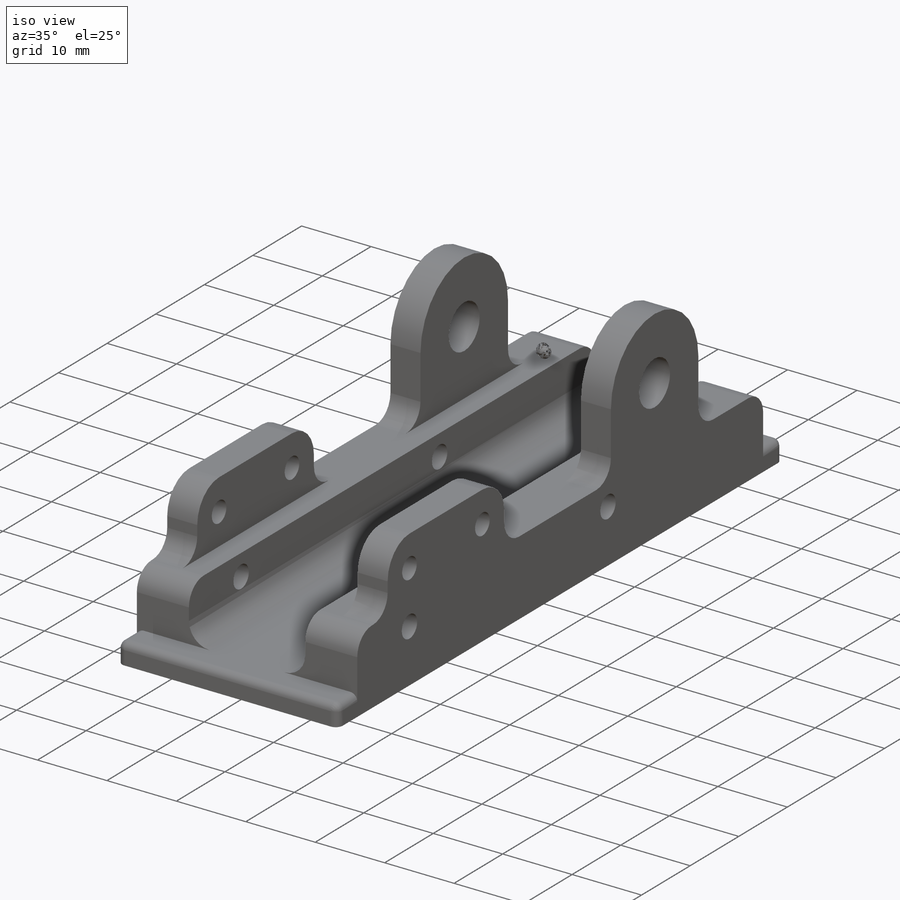
[diagram: iso view]
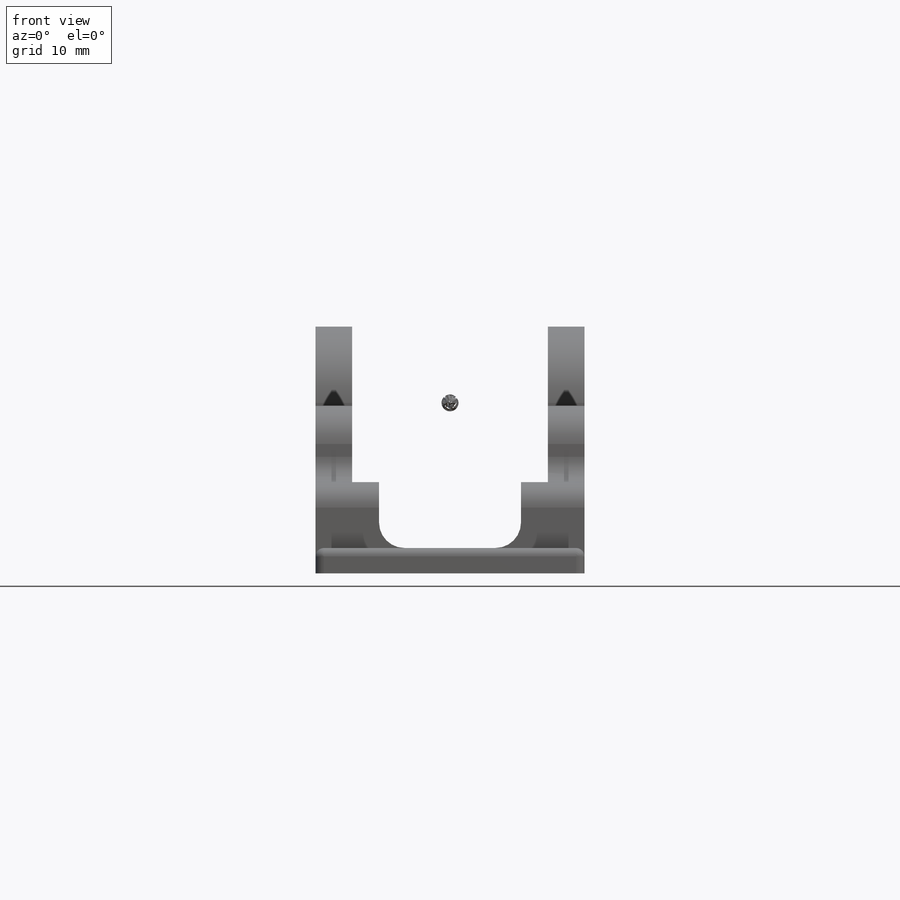
[diagram: front view]
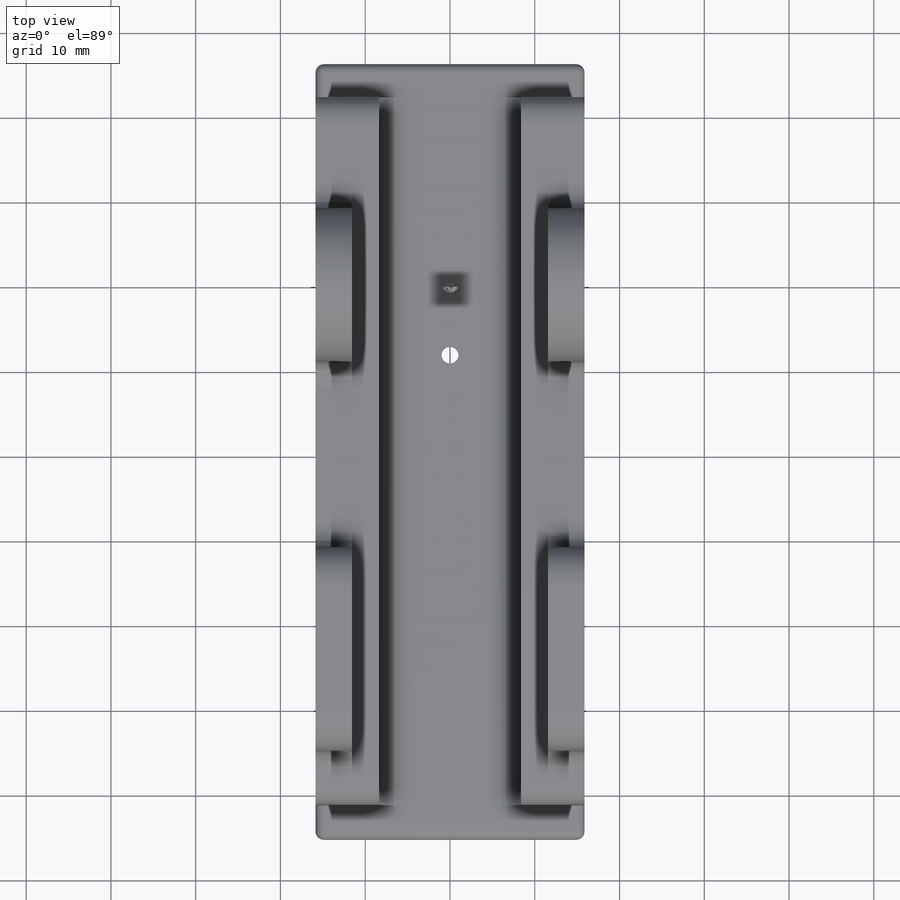
[diagram: top view]
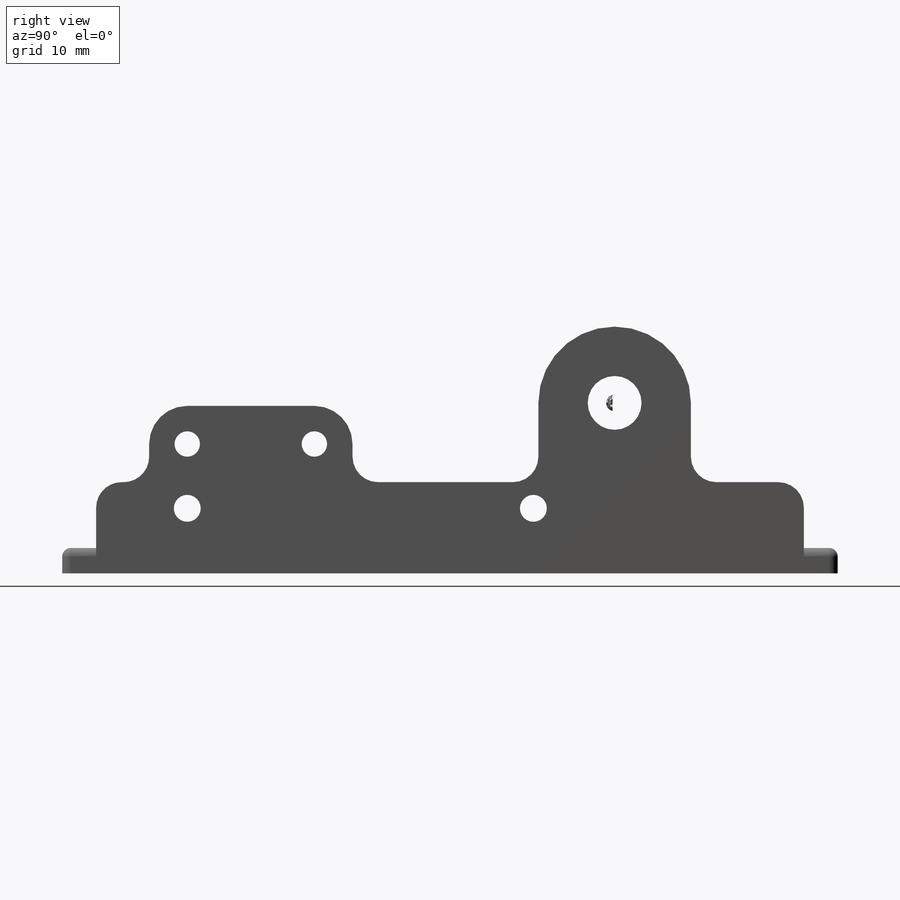
[diagram: right view]
SOLIDWORKS PART (.sldprt)
format: sldprt  version: not decoded by parser v0  size: 406,016 bytes
history: native  units: mm
features: sketch x5, fillet x3, cut_extrude x3, extrude x2, material x1 + 2 further entries (+22 scaffold rows collapsed; 6 parser-record rows omitted)
feature tree (44):
  scaffold x22  (default folders/planes/origin — collapsed)
  material  "ABS"
  "params_print"
  parser-record x6  (decoder bookkeeping rows leaked as tree rows — omitted from the tree; the rows remain in map.json)
  "params_finger_t42"
  sketch  "Sketch1"  dims[c1.D1=6.35mm c1.D2=18.0mm c1.D7=3.0mm c1.D8=3.0mm c1.D10=3.175mm c1.D13=~3.432202mm c1.D3=83.5mm c1.D4=19.425mm c1.D5=11.5mm c1.D6=15.0mm c2.D8=3.0mm c2.D9=0.35mm c2.D11=3.0875mm c2.D12=7.675mm c2.D13=9.5875mm]
  extrude  "Main Body"  Depth=31.75mm
  fillet  "Outer Contouring"  Radius=3mm
  sketch  "Sketch2"  dims[D1=3.0mm D2=7.5mm]
  cut_extrude  "Clearance - Middle"  [1 undecoded]
  sketch  "Sketch3"  dims[D1=4.325mm]
  cut_extrude  "Clearance - Finger"  [1 undecoded]
  sketch  "Sketch4"  dims[D1=2.0mm D2=8.0mm]
  cut_extrude  "Clearance - Tendon"  [1 undecoded]
  sketch  "Sketch5"  dims[D1=4.0mm]
  extrude  "Base Tabs"  [1 undecoded]
  fillet  "Contouring"  Radius=1mm
  fillet  "Inner Contouring"  Radius=3mm
decode coverage: 9 of 13 modeling features carry decoded parameters; 2 rows unclassified (native names shown)
note: ~ marks probable driven/reference dimensions
note: 4 parameter values undecoded
summary: no parameter record found for 4 features
note: suppression state not decoded; provenance and decode notes live in map.json
